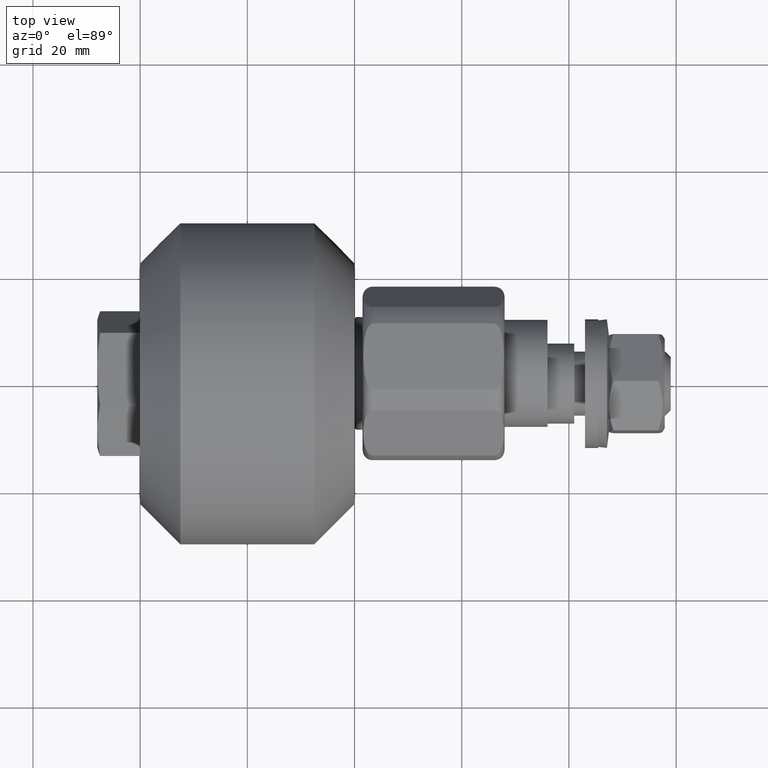
[diagram: clean part render]
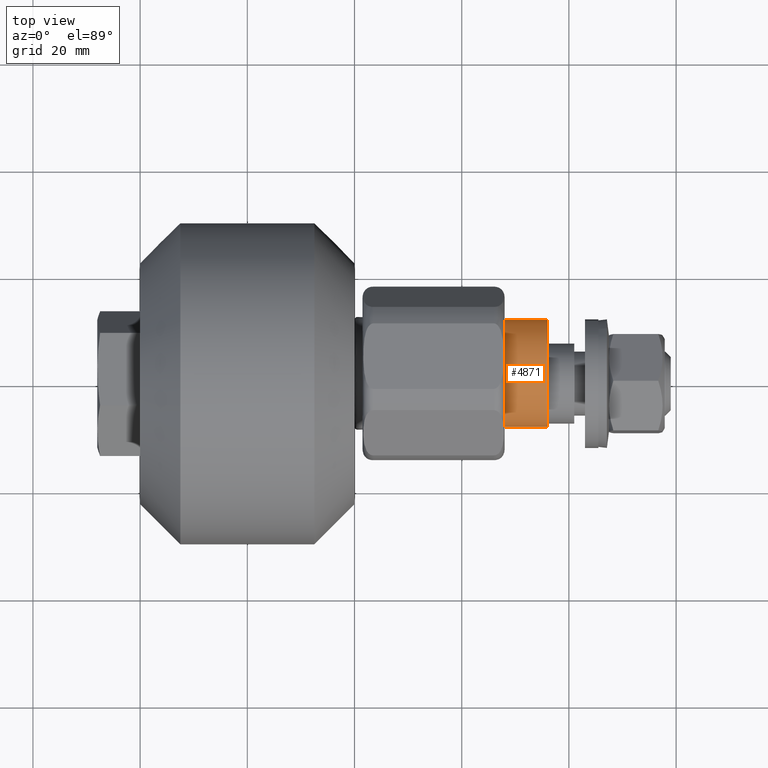
[diagram: same view with one face highlighted and labeled with its STEP entity id]
A machine part, top view. The second image highlights one B-rep face of the part: STEP entity #4871.
In plain terms, the highlighted cylindrical surface (bore or boss wall) has radius 10 mm, axis along (1, 0, 0).
Its self-contained STEP definition (entity closure, byte-faithful):
#330=CYLINDRICAL_SURFACE('',#5391,10.);
#615=FACE_OUTER_BOUND('',#895,.T.);
#895=EDGE_LOOP('',(#3455,#3456,#3457,#3458));
#1179=LINE('',#7731,#1469);
#1469=VECTOR('',#6076,10.);
#1776=CIRCLE('',#5386,10.);
#1777=CIRCLE('',#5392,10.);
#2054=VERTEX_POINT('',#7722);
#2055=VERTEX_POINT('',#7729);
#2602=EDGE_CURVE('',#2054,#2054,#1776,.T.);
#2603=EDGE_CURVE('',#2055,#2055,#1777,.T.);
#2604=EDGE_CURVE('',#2055,#2054,#1179,.T.);
#3455=ORIENTED_EDGE('',*,*,#2603,.F.);
#3456=ORIENTED_EDGE('',*,*,#2604,.T.);
#3457=ORIENTED_EDGE('',*,*,#2602,.T.);
#3458=ORIENTED_EDGE('',*,*,#2604,.F.);
#4871=ADVANCED_FACE('',(#615),#330,.T.);
#5386=AXIS2_PLACEMENT_3D('',#7723,#6062,#6063);
#5391=AXIS2_PLACEMENT_3D('',#7728,#6072,#6073);
#5392=AXIS2_PLACEMENT_3D('',#7730,#6074,#6075);
#6062=DIRECTION('center_axis',(1.,0.,0.));
#6063=DIRECTION('ref_axis',(0.,1.,0.));
#6072=DIRECTION('center_axis',(1.,0.,0.));
#6073=DIRECTION('ref_axis',(0.,1.,0.));
#6074=DIRECTION('center_axis',(1.,0.,0.));
#6075=DIRECTION('ref_axis',(0.,1.,0.));
#6076=DIRECTION('',(-1.,0.,0.));
#7722=CARTESIAN_POINT('',(13.25,-10.,-1.22464679914735E-15));
#7723=CARTESIAN_POINT('Origin',(13.25,0.,0.));
#7728=CARTESIAN_POINT('Origin',(17.25,0.,0.));
#7729=CARTESIAN_POINT('',(21.25,-10.,-1.22464679914735E-15));
#7730=CARTESIAN_POINT('Origin',(21.25,0.,0.));
#7731=CARTESIAN_POINT('',(17.25,-10.,-1.22464679914735E-15));